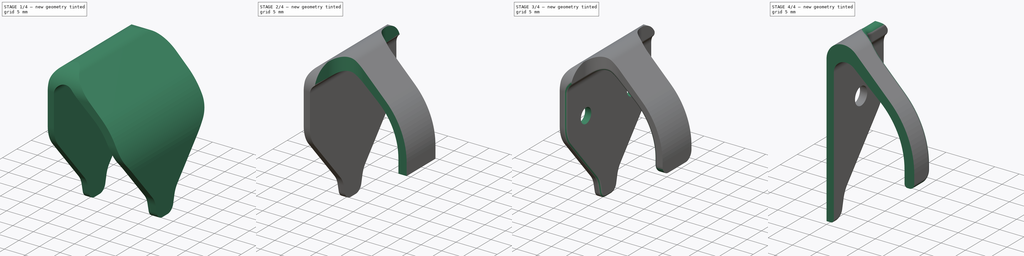
[diagram: build sequence overview — one tinted view per stage of 4, left to right]
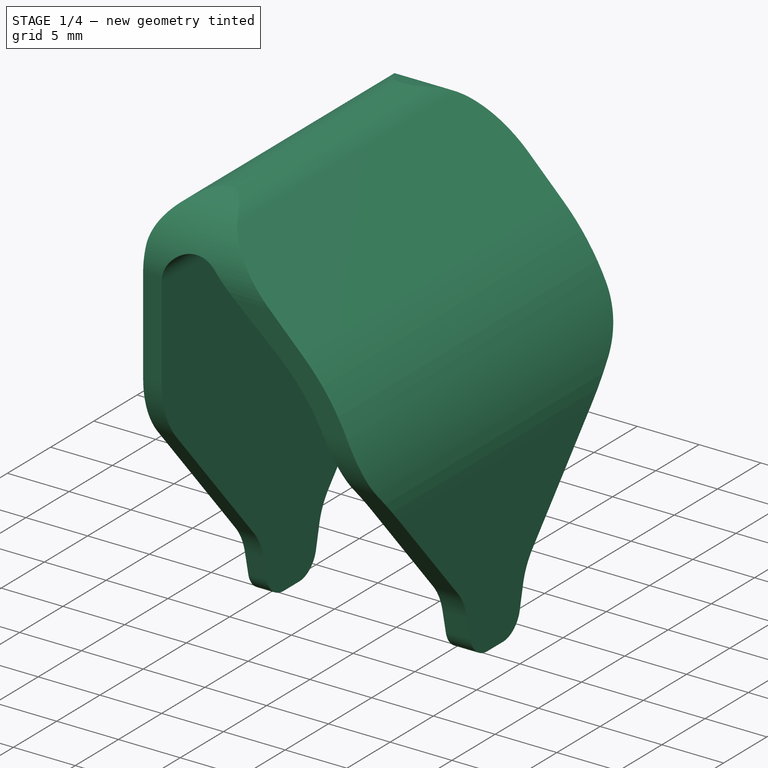
[diagram: stage 1 of 4 — iso view after this stage's code; geometry added in this stage tinted green]
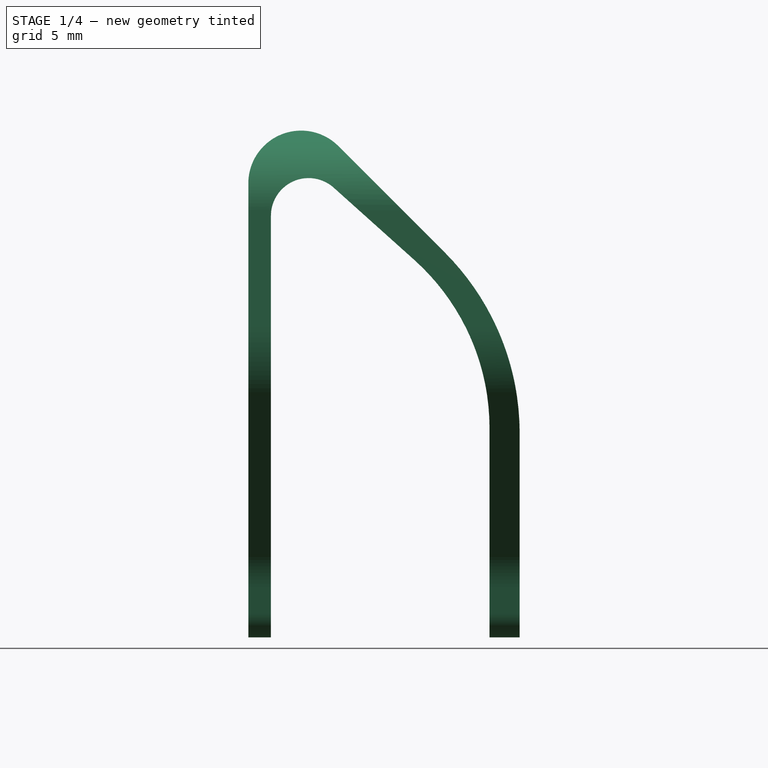
[diagram: stage 1 of 4 — front view after this stage's code; geometry added in this stage tinted green]
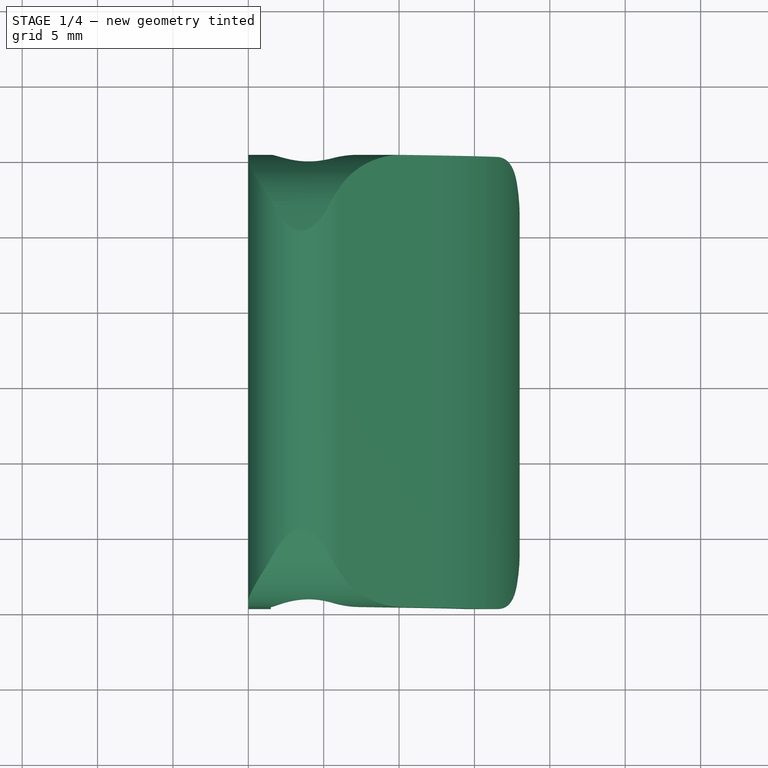
[diagram: stage 1 of 4 — top view after this stage's code; geometry added in this stage tinted green]
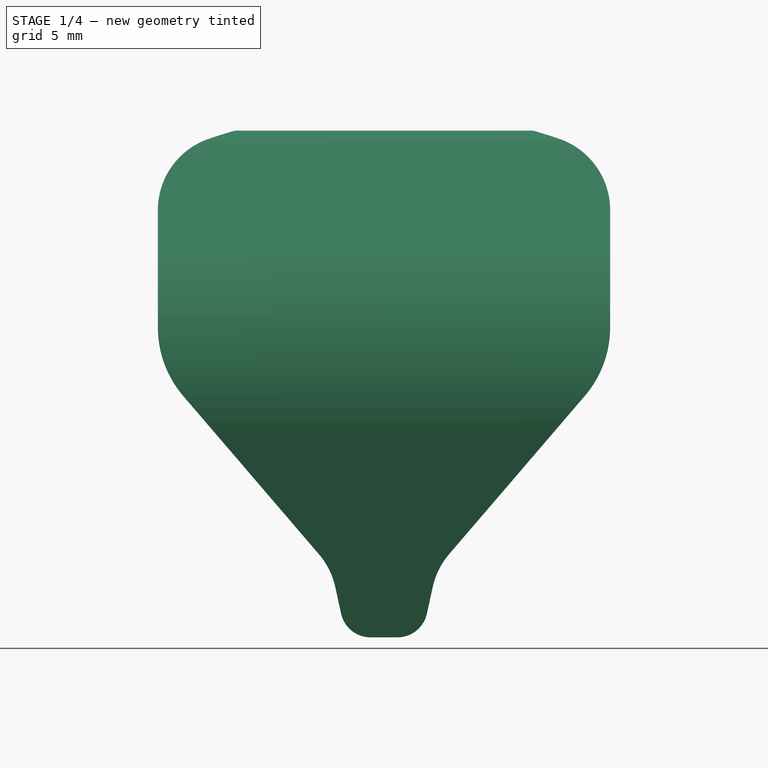
[diagram: stage 1 of 4 — right view after this stage's code; geometry added in this stage tinted green]
FCSTD DOCUMENT  (FreeCAD 0.19R)
Label: Gancho
License: All rights reserved
LicenseURL: http://en.wikipedia.org/wiki/All_rights_reserved
objects: Sketcher::SketchObject×6, PartDesign::Pocket×5, PartDesign::Fillet×3, PartDesign::Pad×1, PartDesign::Body×1
note: 25 computed .brp shape members not serialized (recipe doc carries the construction recipe); baked Part::Feature solids carry a one-line shape summary decoded from their .brp

FEATURE [Sketcher::SketchObject] Sketch
  FullyConstrained = true
  MapMode = 5
  Placement = pos=(0,0,0) rot=(0.57735,0.57735,0.57735;2.0944rad)
  Support = -> [YZ_Plane]
  sketch-geometry (27):
    g0: Circle CenterX=8 CenterY=0 CenterZ=0 NormalX=0 NormalY=0 NormalZ=1 AngleXU=0 Radius=1.8
    g1: Circle CenterX=-8 CenterY=0 CenterZ=0 NormalX=0 NormalY=0 NormalZ=1 AngleXU=0 Radius=1.8
    g2: ArcOfCircle CenterX=8 CenterY=0 CenterZ=0 NormalX=0 NormalY=0 NormalZ=1 AngleXU=0 Radius=7 StartAngle=5.57429 EndAngle=7.49873
    g3: ArcOfCircle CenterX=-8 CenterY=0 CenterZ=0 NormalX=0 NormalY=0 NormalZ=1 AngleXU=0 Radius=7 StartAngle=1.92605 EndAngle=3.85048
    g4: ArcOfCircle CenterX=0 CenterY=-21.5639 CenterZ=0 NormalX=0 NormalY=0 NormalZ=1 AngleXU=0 Radius=30 StartAngle=1.21554 EndAngle=1.92605
    g5: GeomPoint X=3.5 Y=-16 Z=0
    g6: GeomPoint X=-3.5 Y=-16 Z=0
    g7: LineSegment StartX=-4.31933 StartY=-15.0446 StartZ=0 EndX=-13.3136 EndY=-4.55695 EndZ=0
    g8: LineSegment StartX=4.31933 StartY=-15.0446 StartZ=0 EndX=13.3136 EndY=-4.55695 EndZ=0
    g9: LineSegment StartX=3.23062 StartY=-17.2294 StartZ=0 EndX=2.84443 EndY=-18.9919 EndZ=0
    g10: LineSegment StartX=-3.23062 StartY=-17.2294 StartZ=0 EndX=-2.84443 EndY=-18.9919 EndZ=0
    g11: ArcOfCircle CenterX=8.11475 CenterY=-18.2996 CenterZ=0 NormalX=0 NormalY=0 NormalZ=1 AngleXU=0 Radius=5 StartAngle=2.4327 EndAngle=2.92589
    g12: GeomPoint X=3.5 Y=-16 Z=0
    g13: ArcOfCircle CenterX=0.890778 CenterY=-18.5639 CenterZ=0 NormalX=0 NormalY=0 NormalZ=1 AngleXU=0 Radius=2 StartAngle=4.71239 EndAngle=6.06748
    g14: GeomPoint X=2.5 Y=-20.5639 Z=0
    g15: ArcOfCircle CenterX=-0.890778 CenterY=-18.5639 CenterZ=0 NormalX=0 NormalY=0 NormalZ=1 AngleXU=0 Radius=2 StartAngle=3.3573 EndAngle=4.71239
    g16: GeomPoint X=-2.5 Y=-20.5639 Z=0
    g17: ArcOfCircle CenterX=-8.11475 CenterY=-18.2996 CenterZ=0 NormalX=0 NormalY=0 NormalZ=1 AngleXU=0 Radius=5 StartAngle=0.215704 EndAngle=0.708891
    g18: GeomPoint X=-3.5 Y=-16 Z=0
    g19: LineSegment StartX=-15 StartY=7.77894 StartZ=0 EndX=-15 EndY=-6.75074e-08 EndZ=0
    g20: LineSegment StartX=15 StartY=7.77894 StartZ=0 EndX=15 EndY=-2.7e-15 EndZ=0
    g21: ArcOfCircle CenterX=0 CenterY=-21.5639 CenterZ=0 NormalX=0 NormalY=0 NormalZ=1 AngleXU=0 Radius=36 StartAngle=1.24234 EndAngle=1.89925
    g22: ArcOfCircle CenterX=10 CenterY=7.77894 CenterZ=0 NormalX=0 NormalY=0 NormalZ=1 AngleXU=0 Radius=5 StartAngle=0 EndAngle=1.24234
    g23: ArcOfCircle CenterX=-10 CenterY=7.77894 CenterZ=0 NormalX=0 NormalY=0 NormalZ=1 AngleXU=0 Radius=5 StartAngle=1.89925 EndAngle=3.14159
    g24: ArcOfCircle CenterX=8 CenterY=-9e-16 CenterZ=0 NormalX=0 NormalY=0 NormalZ=1 AngleXU=0 Radius=7 StartAngle=5.57429 EndAngle=6.28319
    g25: ArcOfCircle CenterX=-8 CenterY=-9e-16 CenterZ=0 NormalX=0 NormalY=0 NormalZ=1 AngleXU=0 Radius=7 StartAngle=3.14159 EndAngle=3.85048
    g26: LineSegment StartX=-0.890778 StartY=-20.5639 StartZ=0 EndX=0.890777 EndY=-20.5639 EndZ=0
  constraints (67):
    c: PointOnObject(g0,g-1)
    c: Distance(g0,g-2) = 8
    c: Radius(g0) = 1.8
    c: Radius(g1) = 1.8
    c: Symmetric(g0,g1,g-2)
    c: Coincident(g2,g0)
    c: Radius(g2) = 7
    c: Radius(g3) = 7
    c: Coincident(g3,g1)
    c: PointOnObject(g4,g-2)
    c: Radius(g4) = 30
    c: DistanceY(g5,g-1) = 16
    c: DistanceX(g-1,g5) = 3.5
    c: Coincident(g18,g6)
    c: Coincident(g12,g5)
    c: DistanceX(g18,g4) = 3.5
    c: DistanceY(g18,g-1) = 16
    c: DistanceX(g16,g4) = 2.5
    c: Tangent(g2,g8) = -1.5708
    c: Tangent(g2,g4) = -1.5708
    c: Coincident(g3,g4)
    c: Tangent(g3,g7) = 1.5708
    c: PointOnObject(g12,g8)
    c: PointOnObject(g12,g9)
    c: Tangent(g8,g11) = 1.5708
    c: Tangent(g9,g11) = -1.5708
    c: PointOnObject(g14,g9)
    c: Tangent(g9,g13) = 1.5708
    c: PointOnObject(g16,g10)
    c: Tangent(g10,g15) = -1.5708
    c: PointOnObject(g18,g7)
    c: PointOnObject(g18,g10)
    c: Tangent(g7,g17) = -1.5708
    c: Tangent(g10,g17) = 1.5708
    c: Radius(g17) = 5
    c: Radius(g11) = 5
    c: Radius(g13) = 2
    c: Radius(g15) = 2
    c: PointOnObject(g19,g3)
    c: Vertical(g19)
    c: Tangent(g19,g3)
    c: Vertical(g20)
    c: Tangent(g20,g2)
    c: DistanceY(g-1,g20) = 0
    c: Coincident(g21,g4)
    c: Radius(g21) = 36
    c: Tangent(g20,g22) = 1.5708
    c: Tangent(g21,g22) = -1.5708
    c: Tangent(g21,g23) = -1.5708
    c: Tangent(g19,g23) = -1.5708
    c: Radius(g23) = 5
    c: Radius(g22) = 5
    c: Coincident(g24,g2)
    c: Coincident(g24,g20)
    c: Radius(g24) = 7
    c: Coincident(g25,g3)
    c: Coincident(g25,g19)
    c: Radius(g25) = 7
    c: Coincident(g26,g15)
    c: Coincident(g26,g13)
    c: Horizontal(g26)
    c: Tangent(g15,g26)
    c: DistanceY(g13,g21) = -1
    c: DistanceY(g16,g15) = 0
    c: DistanceY(g14,g13) = 0
    c: DistanceY(g10,g9) = 0
    c: DistanceY(g9,g10) = 0
FEATURE [PartDesign::Pad] Pad
  Direction = (1,1,1)
  Length = 20
  Length2 = 100
  Placement = pos=(0,0,0) rot=(0.57735,0.57735,0.57735;2.0944rad)
  Profile = -> Sketch
  Type = 0
FEATURE [Sketcher::SketchObject] Sketch001
  FullyConstrained = true
  MapMode = 5
  Placement = pos=(0,0,0) rot=(1,0,0;1.5708rad)
  Support = -> [XZ_Plane]
  sketch-geometry (23):
    g0: LineSegment StartX=0 StartY=9.55025 StartZ=0 EndX=0 EndY=0 EndZ=0
    g1: LineSegment StartX=0 StartY=0 StartZ=0 EndX=0 EndY=-10 EndZ=0
    g2: LineSegment StartX=18 StartY=-7.04163 StartZ=0 EndX=18 EndY=-10 EndZ=0
    g3: LineSegment StartX=5.97487 StartY=12.0251 StartZ=0 EndX=13.0208 EndY=4.97918 EndZ=0
    g4: LineSegment StartX=18 StartY=-10 StartZ=0 EndX=18 EndY=-50 EndZ=0
    g5: LineSegment StartX=0 StartY=-10 StartZ=0 EndX=0 EndY=-50 EndZ=0
    g6: LineSegment StartX=18 StartY=-50 StartZ=0 EndX=50 EndY=-50 EndZ=0
    g7: LineSegment StartX=50 StartY=-50 StartZ=0 EndX=50 EndY=50 EndZ=0
    g8: LineSegment StartX=50 StartY=50 StartZ=0 EndX=-50 EndY=50 EndZ=0
    g9: LineSegment StartX=-50 StartY=50 StartZ=0 EndX=-50 EndY=-50 EndZ=0
    g10: LineSegment StartX=-50 StartY=-50 StartZ=0 EndX=0 EndY=-50 EndZ=0
    g11: LineSegment StartX=1.5 StartY=-50 StartZ=0 EndX=1.5 EndY=7.40098 EndZ=0
    g12: LineSegment StartX=5.66886 StartY=9.2624 StartZ=0 EndX=11.0132 EndY=4.47095 EndZ=0
    g13: LineSegment StartX=16 StartY=-6.6976 StartZ=0 EndX=16 EndY=-50 EndZ=0
    g14: LineSegment StartX=16 StartY=-50 StartZ=0 EndX=1.5 EndY=-50 EndZ=0
    g15: ArcOfCircle CenterX=4 CenterY=7.40098 CenterZ=0 NormalX=0 NormalY=0 NormalZ=1 AngleXU=0 Radius=2.5 StartAngle=0.83989 EndAngle=3.14159
    g16: GeomPoint X=1.5 Y=13 Z=0
    g17: ArcOfCircle CenterX=1 CenterY=-6.6976 CenterZ=0 NormalX=0 NormalY=0 NormalZ=1 AngleXU=0 Radius=15 StartAngle=0 EndAngle=0.83989
    g18: GeomPoint X=16 Y=0 Z=0
    g19: ArcOfCircle CenterX=1 CenterY=-7.04163 CenterZ=0 NormalX=0 NormalY=0 NormalZ=1 AngleXU=0 Radius=17 StartAngle=0 EndAngle=0.785398
    g20: GeomPoint X=18 Y=0 Z=0
    g21: ArcOfCircle CenterX=3.5 CenterY=9.55025 CenterZ=0 NormalX=0 NormalY=0 NormalZ=1 AngleXU=0 Radius=3.5 StartAngle=0.785398 EndAngle=3.14159
    g22: GeomPoint X=0 Y=18 Z=0
  constraints (61):
    c: Vertical(g0)
    c: Coincident(g1,g0)
    c: Vertical(g1)
    c: DistanceY(g0,g22) = 18
    c: DistanceY(g0,g-1) = 0
    c: DistanceX(g-1,g0) = 0
    c: DistanceY(g1,g1) = 10
    c: Vertical(g2)
    c: DistanceY(g2,g-1) = 10
    c: DistanceX(g0,g20) = 18
    c: Coincident(g4,g2)
    c: Vertical(g4)
    c: Coincident(g5,g1)
    c: Vertical(g5)
    c: Coincident(g6,g4)
    c: Horizontal(g6)
    c: Coincident(g7,g6)
    c: Vertical(g7)
    c: Coincident(g8,g7)
    c: Horizontal(g8)
    c: Vertical(g9)
    c: Coincident(g10,g9)
    c: Horizontal(g10)
    c: Coincident(g10,g5)
    c: Coincident(g9,g8)
    c: Vertical(g11)
    c: Vertical(g13)
    c: Coincident(g14,g13)
    c: Coincident(g14,g11)
    c: Horizontal(g14)
    c: DistanceX(g8,g8) = 100
    c: DistanceY(g7,g7) = 100
    c: DistanceY(g9,g9) = 100
    c: DistanceY(g-1,g7) = 50
    c: DistanceX(g9,g-1) = 50
    c: DistanceY(g11,g-1) = 50
    c: DistanceY(g-1,g16) = 13
    c: DistanceX(g0,g18) = 16
    c: DistanceY(g0,g20) = 0
    c: DistanceY(g-1,g18) = 0
    c: DistanceX(g0,g16) = 1.5
    c: PointOnObject(g16,g11)
    c: PointOnObject(g16,g12)
    c: Tangent(g11,g15) = 1.5708
    c: Tangent(g12,g15) = 1.5708
    c: PointOnObject(g18,g12)
    c: PointOnObject(g18,g13)
    c: Tangent(g12,g17) = 1.5708
    c: Tangent(g13,g17) = 1.5708
    c: PointOnObject(g20,g2)
    c: PointOnObject(g20,g3)
    c: Tangent(g2,g19) = 1.5708
    c: Tangent(g3,g19) = 1.5708
    c: PointOnObject(g22,g0)
    c: PointOnObject(g22,g3)
    c: Tangent(g0,g21) = -1.5708
    c: Tangent(g3,g21) = 1.5708
    c: Radius(g19) = 17
    c: Radius(g21) = 3.5
    c: Radius(g17) = 15
    c: Radius(g15) = 2.5
FEATURE [PartDesign::Pocket] Pocket
  BaseFeature = -> Pad
  Length = 50
  Length2 = 100
  Midplane = true
  Placement = pos=(0,0,0) rot=(0.57735,0.57735,0.57735;2.0944rad)
  Profile = -> Sketch001
  Reversed = true
  Type = 0
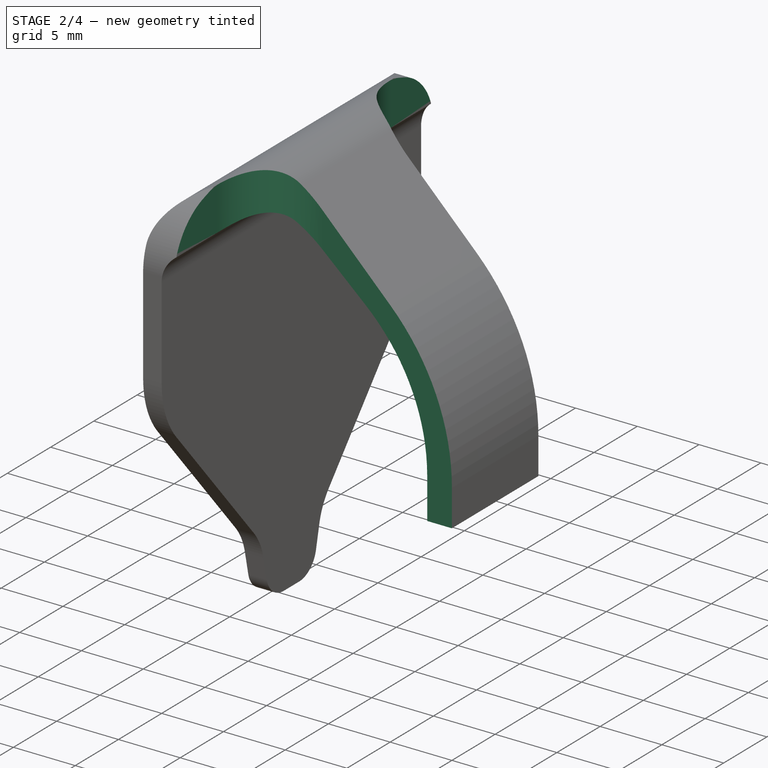
[diagram: stage 2 of 4 — iso view after this stage's code; geometry added in this stage tinted green]
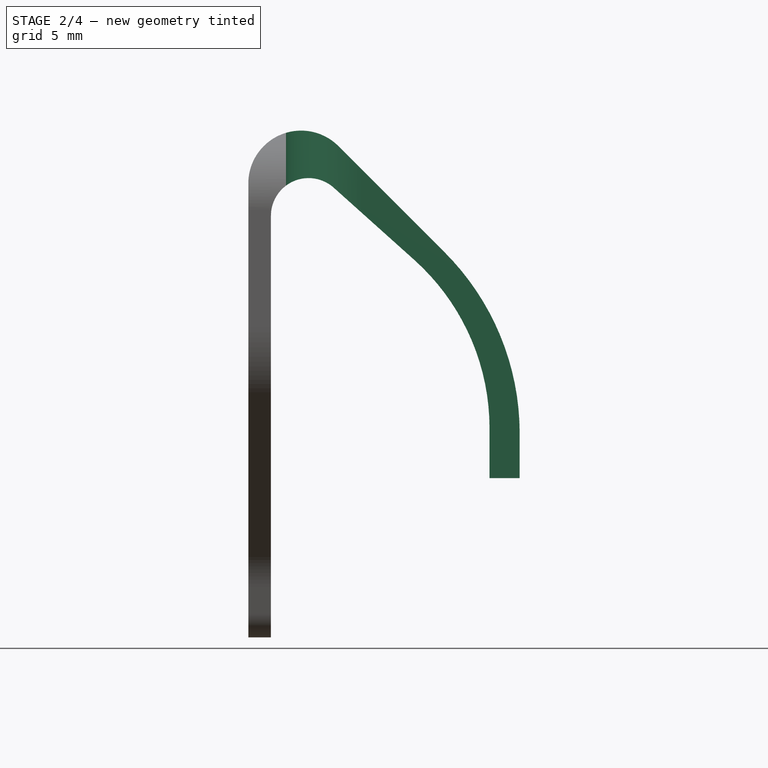
[diagram: stage 2 of 4 — front view after this stage's code; geometry added in this stage tinted green]
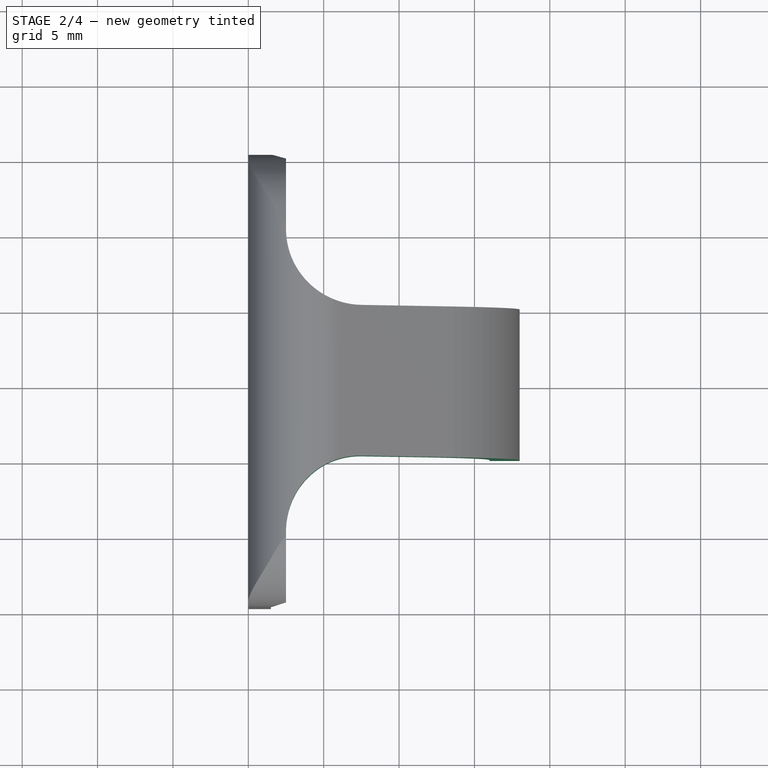
[diagram: stage 2 of 4 — top view after this stage's code; geometry added in this stage tinted green]
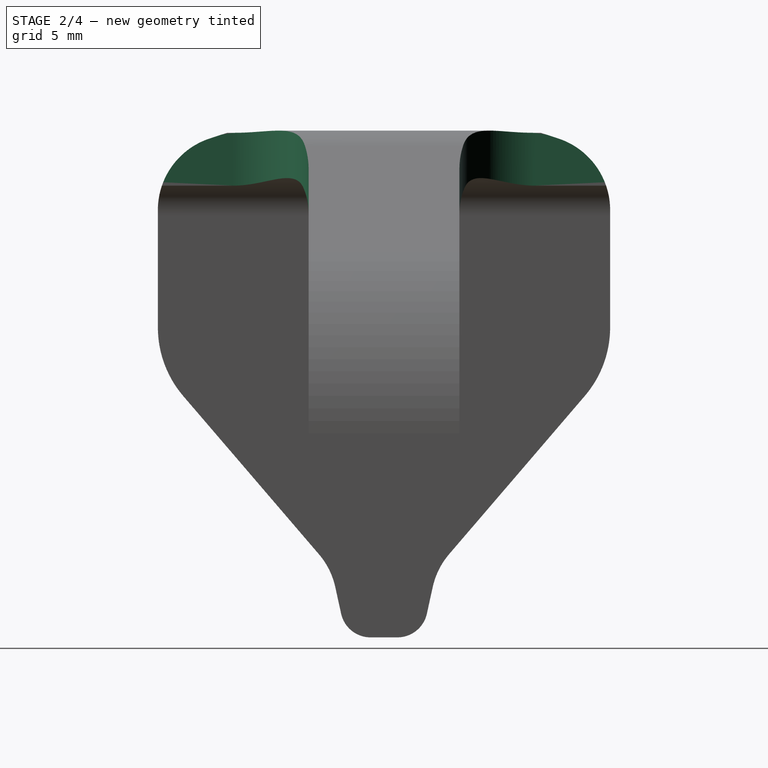
[diagram: stage 2 of 4 — right view after this stage's code; geometry added in this stage tinted green]
FEATURE [Sketcher::SketchObject] Sketch002
  FullyConstrained = false
  MapMode = 5
  Placement = pos=(0,0,0) rot=(1,0,0;1.5708rad)
  Support = -> [XZ_Plane]
  sketch-geometry (4):
    g0: LineSegment StartX=7.19626 StartY=-10 StartZ=0 EndX=24.6275 EndY=-10 EndZ=0
    g1: LineSegment StartX=24.6275 StartY=-10 StartZ=0 EndX=24.6275 EndY=-33.8548 EndZ=0
    g2: LineSegment StartX=24.6275 StartY=-33.8548 StartZ=0 EndX=7.19626 EndY=-33.8548 EndZ=0
    g3: LineSegment StartX=7.19626 StartY=-33.8548 StartZ=0 EndX=7.19626 EndY=-10 EndZ=0
  constraints (9):
    c: Coincident(g0,g1)
    c: Coincident(g1,g2)
    c: Coincident(g2,g3)
    c: Coincident(g3,g0)
    c: Horizontal(g0)
    c: Horizontal(g2)
    c: Vertical(g1)
    c: Vertical(g3)
    c: DistanceY(g0,g-1) = 10
FEATURE [PartDesign::Pocket] Pocket001
  BaseFeature = -> Pocket
  Length = 5
  Length2 = 100
  Midplane = true
  Placement = pos=(0,0,0) rot=(0.57735,0.57735,0.57735;2.0944rad)
  Profile = -> Sketch002
  Type = 1
FEATURE [Sketcher::SketchObject] Sketch003
  FullyConstrained = false
  MapMode = 5
  Support = -> [XY_Plane]
  sketch-geometry (12):
    g0: LineSegment StartX=7.5 StartY=5 StartZ=0 EndX=50 EndY=5 EndZ=0
    g1: LineSegment StartX=50 StartY=5 StartZ=0 EndX=50 EndY=-5 EndZ=0
    g2: LineSegment StartX=50 StartY=-5 StartZ=0 EndX=7.5 EndY=-5 EndZ=0
    g3: LineSegment StartX=-20 StartY=20 StartZ=0 EndX=2.5 EndY=20 EndZ=0
    g4: LineSegment StartX=2.5 StartY=20 StartZ=0 EndX=2.5 EndY=10 EndZ=0
    g5: LineSegment StartX=2.5 StartY=-20 StartZ=0 EndX=-20 EndY=-20 EndZ=0
    g6: LineSegment StartX=-20 StartY=-20 StartZ=0 EndX=-20 EndY=20 EndZ=0
    g7: LineSegment StartX=2.5 StartY=-20 StartZ=0 EndX=2.5 EndY=-10 EndZ=0
    g8: Circle CenterX=0 CenterY=0 CenterZ=0 NormalX=0 NormalY=0 NormalZ=1 AngleXU=0 Radius=90.1157
    g9: ArcOfCircle CenterX=7.5 CenterY=10 CenterZ=0 NormalX=0 NormalY=0 NormalZ=1 AngleXU=0 Radius=5 StartAngle=3.14159 EndAngle=4.71239
    g10: ArcOfCircle CenterX=7.5 CenterY=-10 CenterZ=0 NormalX=0 NormalY=0 NormalZ=1 AngleXU=0 Radius=5 StartAngle=1.5708 EndAngle=3.14159
    g11: GeomPoint X=2.5 Y=-5 Z=0
  constraints (31):
    c: Coincident(g0,g1)
    c: Coincident(g1,g2)
    c: Horizontal(g0)
    c: Horizontal(g2)
    c: Vertical(g1)
    c: Coincident(g3,g4)
    c: Coincident(g5,g6)
    c: Coincident(g6,g3)
    c: Horizontal(g3)
    c: Horizontal(g5)
    c: Vertical(g4)
    c: Vertical(g6)
    c: Coincident(g7,g5)
    c: Vertical(g7)
    c: DistanceY(g6,g6) = 40
    c: DistanceX(g3,g-1) = 20
    c: DistanceY(g-1,g3) = 20
    c: DistanceY(g1,g1) = 10
    c: DistanceY(g-1,g0) = 5
    c: Coincident(g8,g-1)
    c: DistanceX(g8,g3) = 2.5
    c: DistanceX(g8,g11) = 2.5
    c: Tangent(g0,g9) = -1.5708
    c: Tangent(g4,g9) = -1.5708
    c: Radius(g9) = 5
    c: PointOnObject(g11,g7)
    c: PointOnObject(g11,g2)
    c: Tangent(g7,g10) = 1.5708
    c: Tangent(g2,g10) = -1.5708
    c: Radius(g10) = 5
    c: DistanceX(g8,g0) = 50
FEATURE [PartDesign::Pocket] Pocket002
  BaseFeature = -> Pocket001
  Length = 5
  Length2 = 100
  Midplane = true
  Placement = pos=(0,0,0) rot=(0.57735,0.57735,0.57735;2.0944rad)
  Profile = -> Sketch003
  Reversed = true
  Type = 1
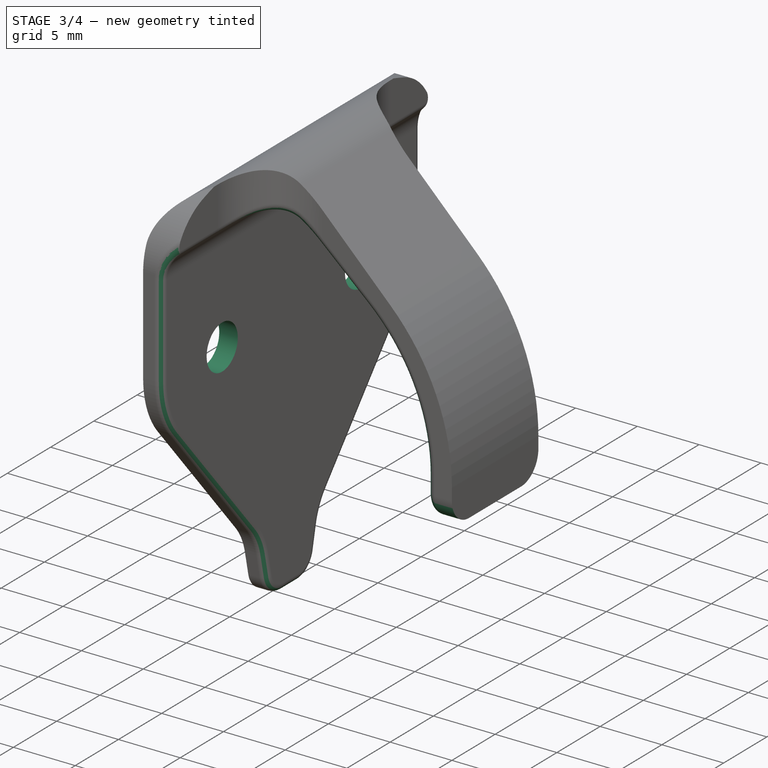
[diagram: stage 3 of 4 — iso view after this stage's code; geometry added in this stage tinted green]
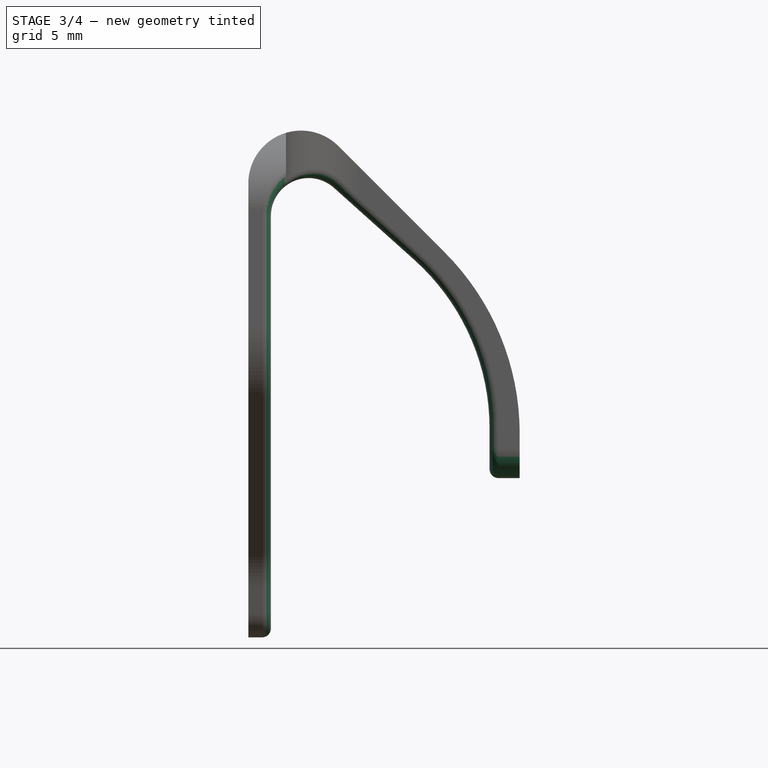
[diagram: stage 3 of 4 — front view after this stage's code; geometry added in this stage tinted green]
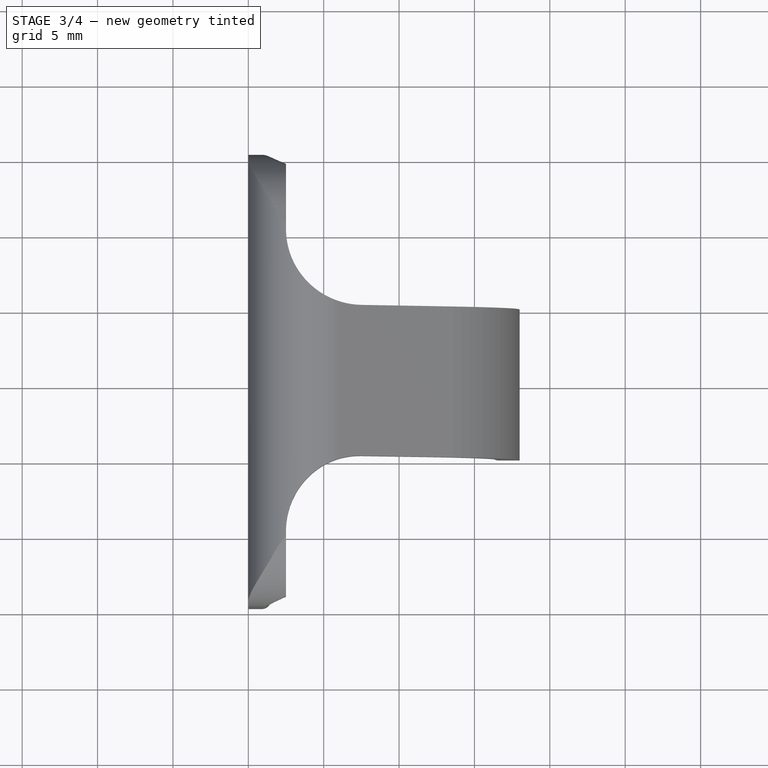
[diagram: stage 3 of 4 — top view after this stage's code; geometry added in this stage tinted green]
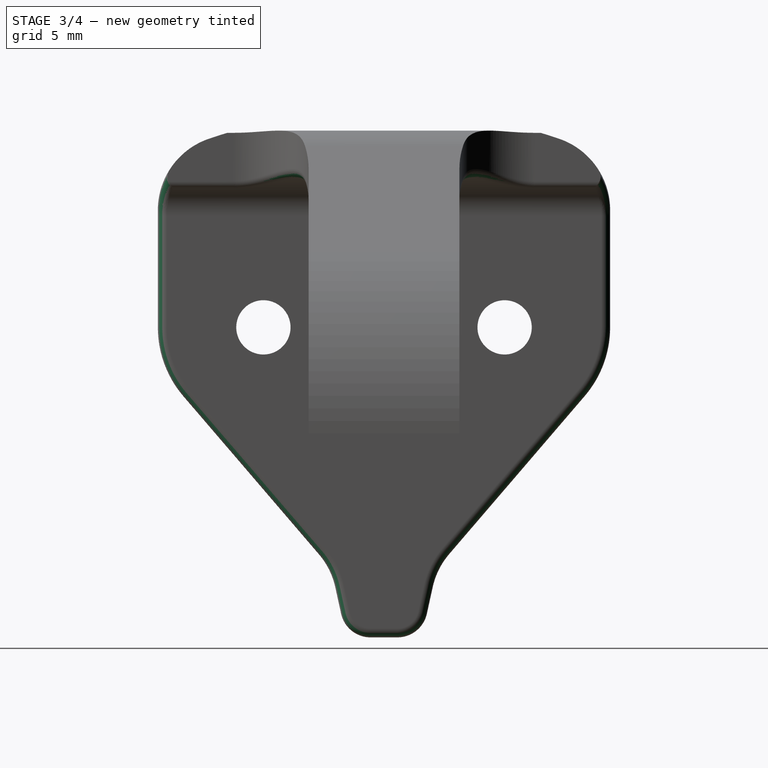
[diagram: stage 3 of 4 — right view after this stage's code; geometry added in this stage tinted green]
FEATURE [Sketcher::SketchObject] Sketch004
  FullyConstrained = true
  MapMode = 5
  Placement = pos=(0,0,0) rot=(0.57735,0.57735,0.57735;2.0944rad)
  Support = -> [YZ_Plane]
  sketch-geometry (2):
    g0: Circle CenterX=8 CenterY=0 CenterZ=0 NormalX=0 NormalY=0 NormalZ=1 AngleXU=0 Radius=1.8
    g1: Circle CenterX=-8 CenterY=0 CenterZ=0 NormalX=0 NormalY=0 NormalZ=1 AngleXU=0 Radius=1.8
  constraints (6):
    c: PointOnObject(g0,g-1)
    c: Radius(g0) = 1.8
    c: DistanceX(g-1,g0) = 8
    c: PointOnObject(g1,g-1)
    c: Radius(g1) = 1.8
    c: DistanceX(g1,g-1) = 8
FEATURE [PartDesign::Pocket] Pocket003
  BaseFeature = -> Pocket002
  Length = 0
  Length2 = 100
  Placement = pos=(0,0,0) rot=(0.57735,0.57735,0.57735;2.0944rad)
  Profile = -> Sketch004
  Type = 3
  UpToFace = -> Pocket002 [Face4]
FEATURE [PartDesign::Fillet] Fillet
  Base = -> Pocket003 [Edge104,Edge99]
  BaseFeature = -> Pocket003
  Placement = pos=(0,0,0) rot=(0.57735,0.57735,0.57735;2.0944rad)
  Radius = 2
  SupportTransform = false
FEATURE [PartDesign::Fillet] Fillet001
  Base = -> Fillet [Edge34,Edge18,Edge19,Edge21,Edge15,Edge4,Edge6,Edge8,Edge32,Edge26,Edge33,Edge49,Edge54,Edge29,Edge30,Edge53,Edge40]
  BaseFeature = -> Fillet
  Placement = pos=(0,0,0) rot=(0.57735,0.57735,0.57735;2.0944rad)
  Radius = 0.6
  SupportTransform = false
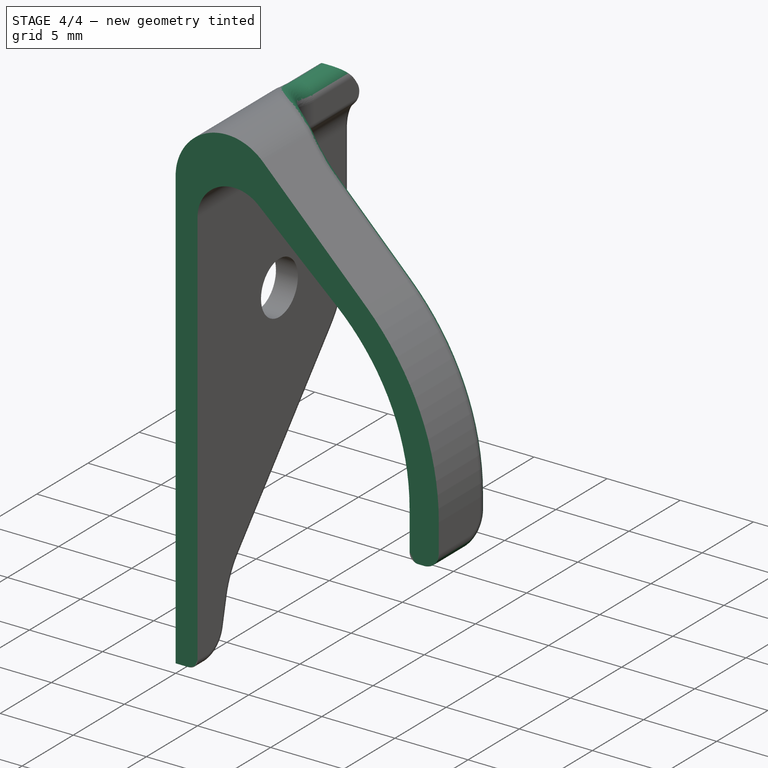
[diagram: stage 4 of 4 — iso view after this stage's code; geometry added in this stage tinted green]
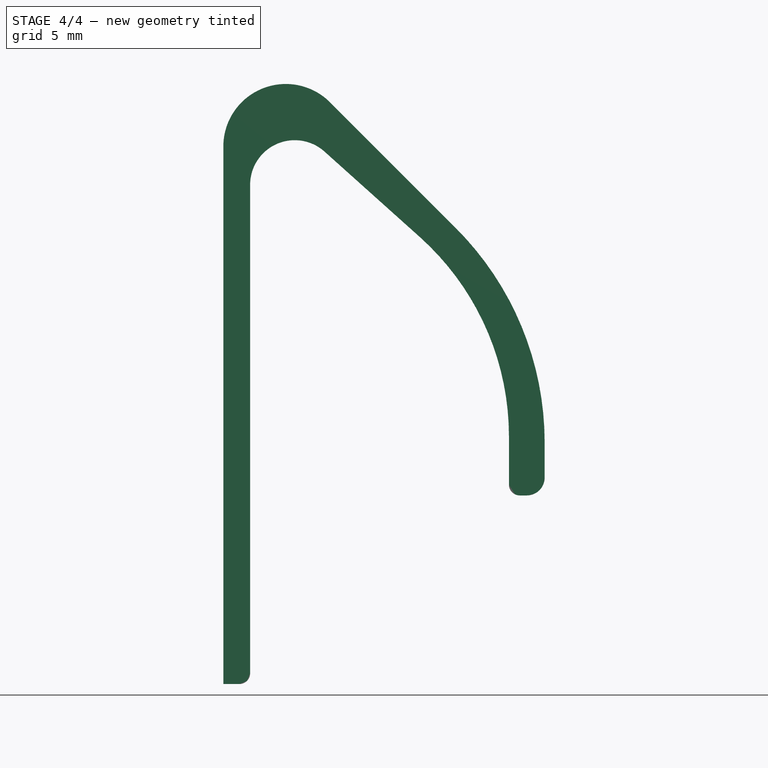
[diagram: stage 4 of 4 — front view after this stage's code; geometry added in this stage tinted green]
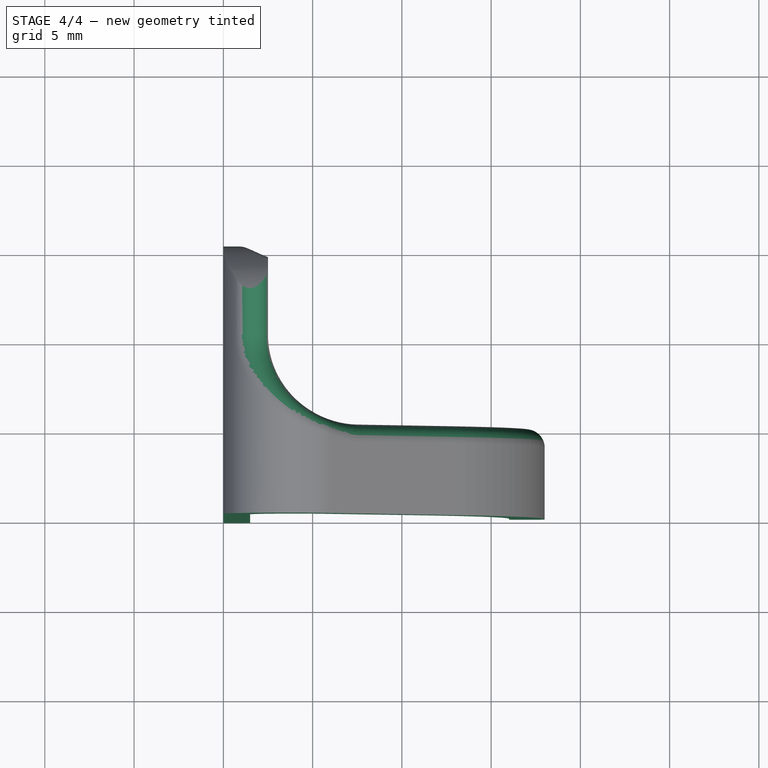
[diagram: stage 4 of 4 — top view after this stage's code; geometry added in this stage tinted green]
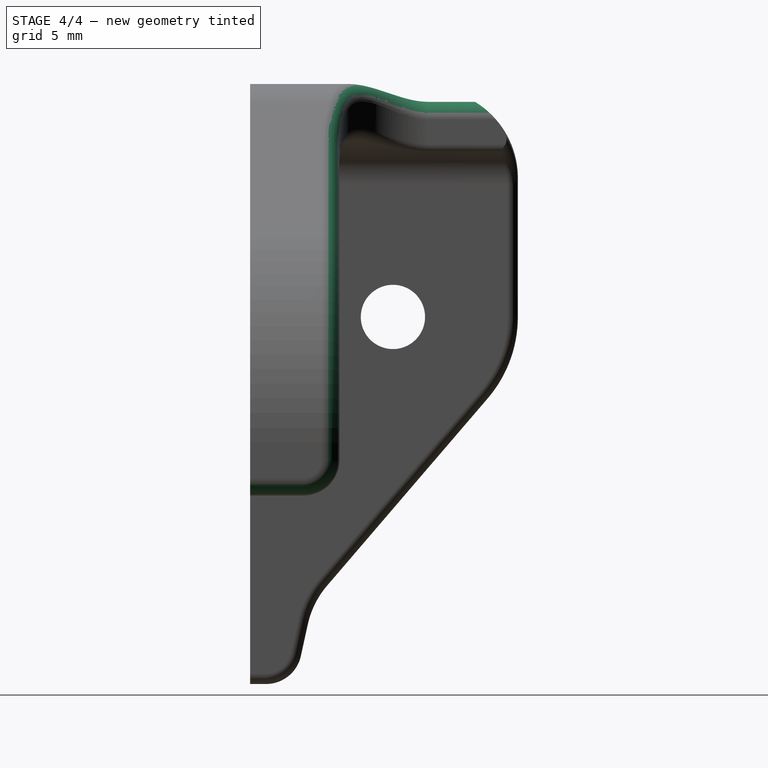
[diagram: stage 4 of 4 — right view after this stage's code; geometry added in this stage tinted green]
FEATURE [Sketcher::SketchObject] Sketch005
  FullyConstrained = true
  MapMode = 5
  Placement = pos=(0,0,0) rot=(1,0,0;1.5708rad)
  Support = -> [XZ_Plane]
  sketch-geometry (1):
    g0: Circle CenterX=0 CenterY=0 CenterZ=0 NormalX=0 NormalY=0 NormalZ=1 AngleXU=0 Radius=100
  constraints (2):
    c: Coincident(g0,g-1)
    c: Radius(g0) = 100
FEATURE [PartDesign::Fillet] Fillet002
  Base = -> Fillet001 [Edge56,Edge25,Edge26,Edge21,Edge15,Edge16,Edge18,Edge10,Edge3,Edge5,Edge7,Edge27,Edge31]
  BaseFeature = -> Fillet001
  Placement = pos=(0,0,0) rot=(0.57735,0.57735,0.57735;2.0944rad)
  Radius = 1
  SupportTransform = false
FEATURE [PartDesign::Pocket] Pocket004
  BaseFeature = -> Fillet002
  Length = 5
  Length2 = 100
  Placement = pos=(0,0,0) rot=(0.57735,0.57735,0.57735;2.0944rad)
  Profile = -> Sketch005
  Reversed = true
  Type = 1
FEATURE [PartDesign::Body] Body
  Group = -> [Sketch,Pad,Sketch001,Pocket,Sketch002,Pocket001,Sketch003,Pocket002,Sketch004,Pocket003,Fillet,Fillet001,Sketch005,Fillet002,Pocket004]
  Origin = -> Origin
  Tip = -> Pocket004
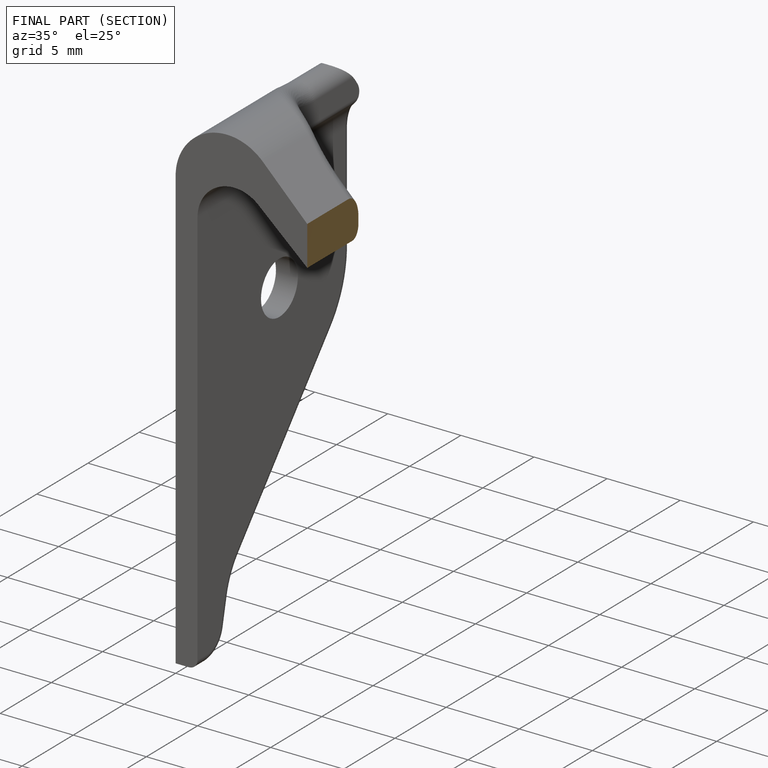
[diagram: finished part — half-section view (interior)]
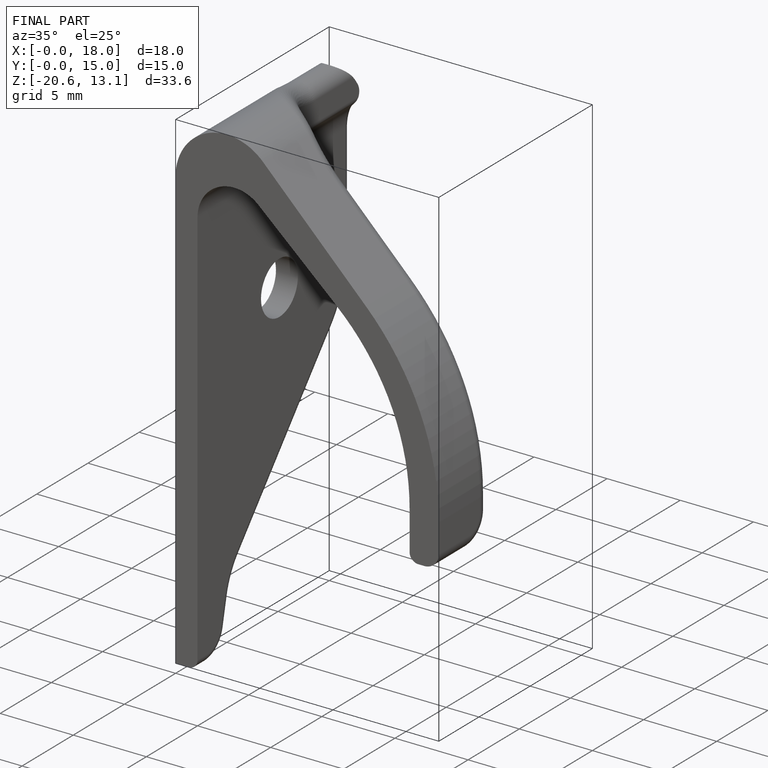
[diagram: finished part — iso view with bounding-box wireframe]
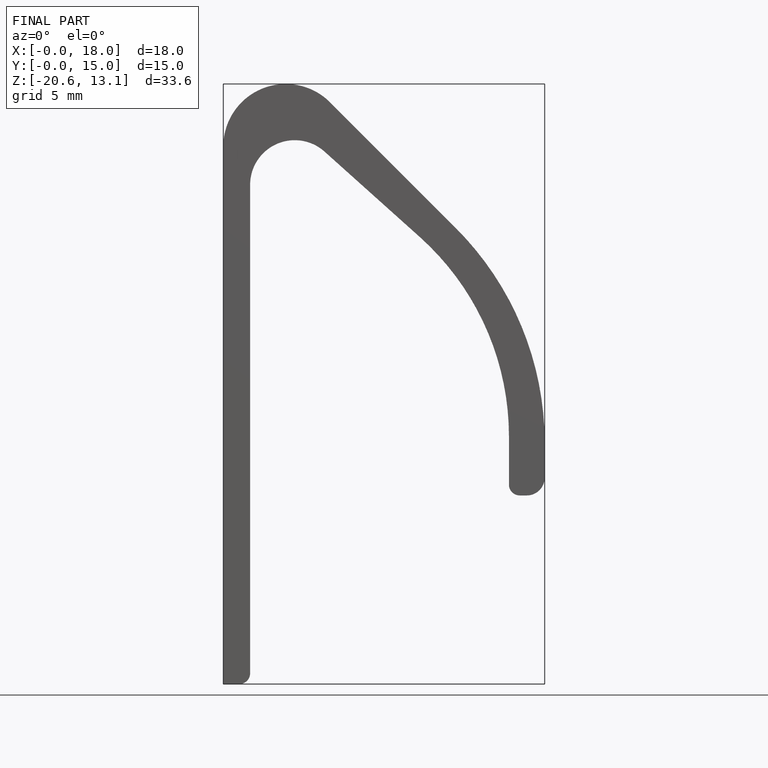
[diagram: finished part — front view with bounding-box wireframe]
